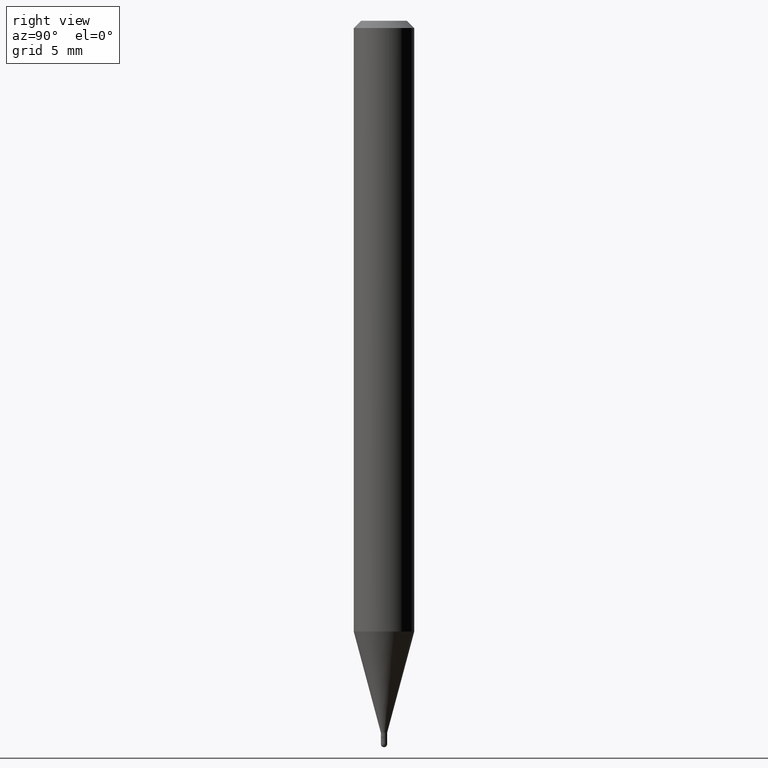
[diagram: clean part render]
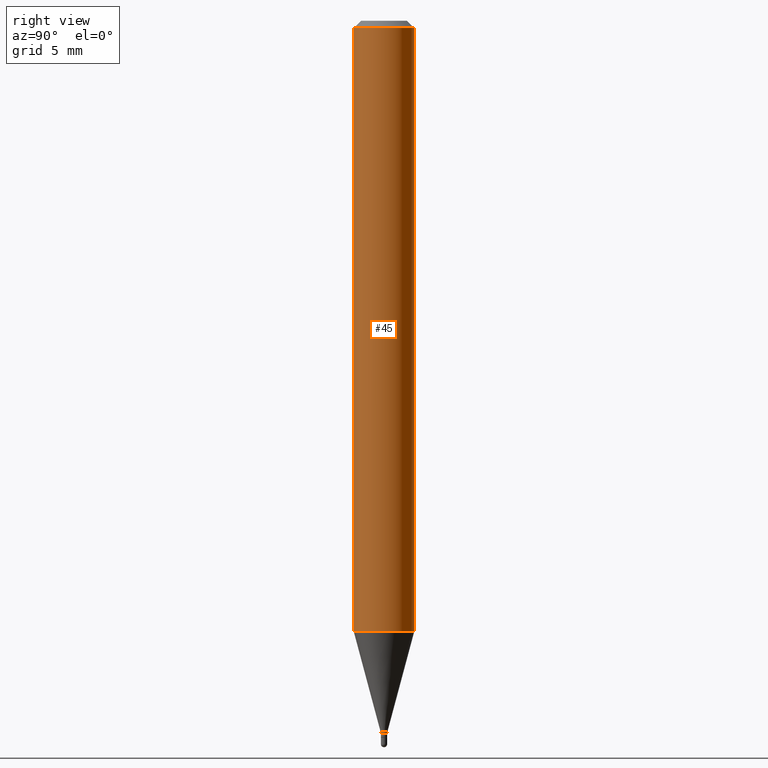
[diagram: same view with one face highlighted and labeled with its STEP entity id]
A machine part, right view. The second image highlights one B-rep face of the part: STEP entity #45.
In plain terms, the highlighted cylindrical surface (edge-blend (fillet) strip) has radius 1.5875 mm, axis along (-0, 0, 1).
Its self-contained STEP definition (entity closure, byte-faithful):
#1 = AXIS2_PLACEMENT_3D ( 'NONE', #377, #23, #67 ) ;
#4 = CARTESIAN_POINT ( 'NONE',  ( -4.364351673553916201E-16, -0.06250000000000000000, 2.182182426191505568E-16 ) ) ;
#14 = AXIS2_PLACEMENT_3D ( 'NONE', #266, #193, #142 ) ;
#22 = ORIENTED_EDGE ( 'NONE', *, *, #402, .T. ) ;
#23 = DIRECTION ( 'NONE',  ( -2.445461444003408996E-29, 3.491491881906408909E-15, 1.000000000000000000 ) ) ;
#38 = LINE ( 'NONE', #110, #136 ) ;
#45 = ADVANCED_FACE ( 'NONE', ( #464 ), #227, .T. ) ;
#64 = DIRECTION ( 'NONE',  ( -6.982962677686265922E-15, -1.000000000000000000, 4.370956789862821150E-15 ) ) ;
#67 = DIRECTION ( 'NONE',  ( -6.982962677686265922E-15, -1.000000000000000000, 3.491491881906408909E-15 ) ) ;
#79 = DIRECTION ( 'NONE',  ( -2.445461444003409276E-29, 3.491491881906408909E-15, 1.000000000000000000 ) ) ;
#82 = VECTOR ( 'NONE', #316, 39.37007874015748143 ) ;
#83 = CIRCLE ( 'NONE', #14, 0.06250000000000000000 ) ;
#110 = CARTESIAN_POINT ( 'NONE',  ( 4.440892098500625669E-16, 0.06250000000000000000, -2.182182426191505568E-16 ) ) ;
#118 = EDGE_CURVE ( 'NONE', #432, #412, #38, .T. ) ;
#127 = EDGE_CURVE ( 'NONE', #362, #325, #354, .T. ) ;
#136 = VECTOR ( 'NONE', #79, 39.37007874015748143 ) ;
#142 = DIRECTION ( 'NONE',  ( -6.982962677686265922E-15, -1.000000000000000000, 3.483106191921935554E-15 ) ) ;
#170 = ORIENTED_EDGE ( 'NONE', *, *, #311, .F. ) ;
#177 = ORIENTED_EDGE ( 'NONE', *, *, #118, .T. ) ;
#193 = DIRECTION ( 'NONE',  ( -2.445461444003408996E-29, 3.491491881906408909E-15, 1.000000000000000000 ) ) ;
#223 = CARTESIAN_POINT ( 'NONE',  ( 4.440892098500932831E-16, 0.06249999999999557992, -1.261005154776143389 ) ) ;
#227 = CYLINDRICAL_SURFACE ( 'NONE', #1, 0.06250000000000000000 ) ;
#232 = CARTESIAN_POINT ( 'NONE',  ( -4.364351673553912750E-16, -0.06250000000000005551, -0.01499999999999954321 ) ) ;
#266 = CARTESIAN_POINT ( 'NONE',  ( 3.668192166005054832E-31, -5.237237822859530139E-17, -0.01499999999999976179 ) ) ;
#269 = CARTESIAN_POINT ( 'NONE',  ( 4.440892098500935790E-16, 0.06249999999999995143, -0.01499999999999997863 ) ) ;
#289 = EDGE_LOOP ( 'NONE', ( #22, #177, #170, #411 ) ) ;
#311 = EDGE_CURVE ( 'NONE', #325, #412, #83, .T. ) ;
#315 = CIRCLE ( 'NONE', #479, 0.06250000000000000000 ) ;
#316 = DIRECTION ( 'NONE',  ( -2.445461444003409276E-29, 3.491491881906408909E-15, 1.000000000000000000 ) ) ;
#325 = VERTEX_POINT ( 'NONE', #232 ) ;
#337 = CARTESIAN_POINT ( 'NONE',  ( -4.364351673553608545E-16, -0.06250000000000439926, -1.261005154776142723 ) ) ;
#354 = LINE ( 'NONE', #4, #82 ) ;
#362 = VERTEX_POINT ( 'NONE', #337 ) ;
#377 = CARTESIAN_POINT ( 'NONE',  ( 0.000000000000000000, 0.000000000000000000, 0.000000000000000000 ) ) ;
#402 = EDGE_CURVE ( 'NONE', #362, #432, #315, .T. ) ;
#411 = ORIENTED_EDGE ( 'NONE', *, *, #127, .F. ) ;
#412 = VERTEX_POINT ( 'NONE', #269 ) ;
#427 = DIRECTION ( 'NONE',  ( -2.445461444003408996E-29, 3.491491881906408909E-15, 1.000000000000000000 ) ) ;
#432 = VERTEX_POINT ( 'NONE', #223 ) ;
#464 = FACE_OUTER_BOUND ( 'NONE', #289, .T. ) ;
#469 = CARTESIAN_POINT ( 'NONE',  ( 3.083739486694608884E-29, -4.402789260943038280E-15, -1.261005154776143167 ) ) ;
#479 = AXIS2_PLACEMENT_3D ( 'NONE', #469, #427, #64 ) ;